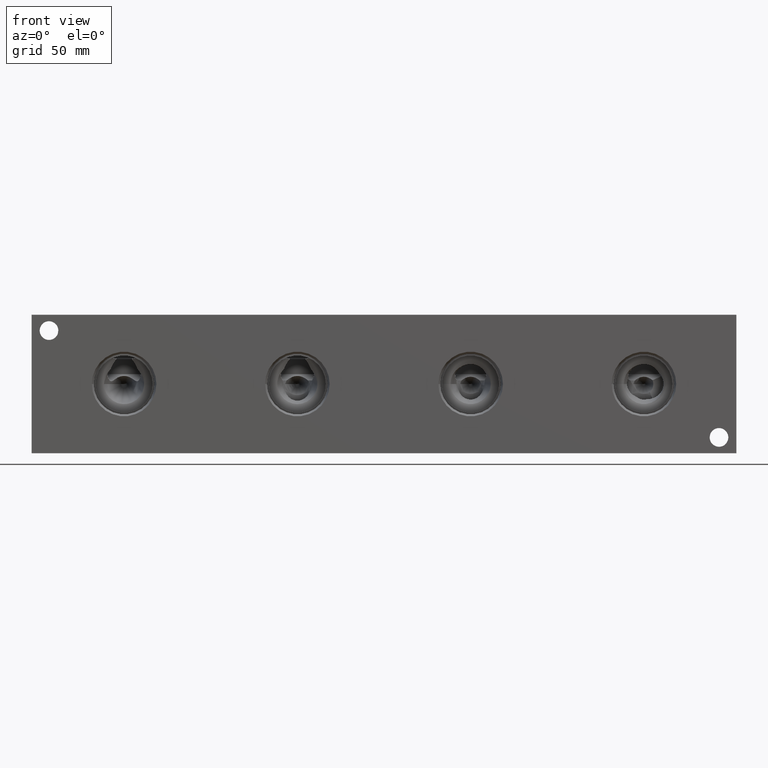
[diagram: clean part render]
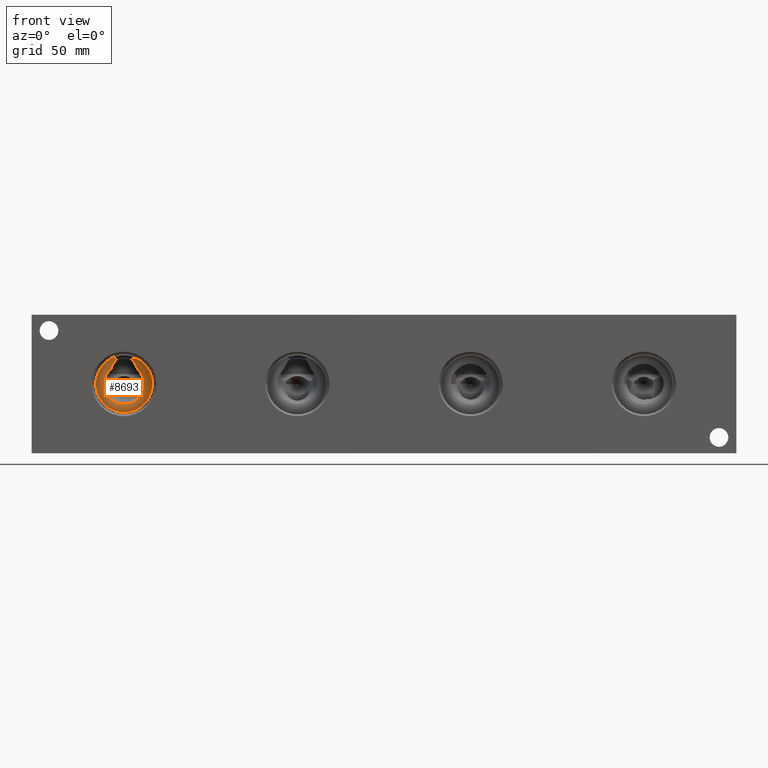
[diagram: same view with one face highlighted and labeled with its STEP entity id]
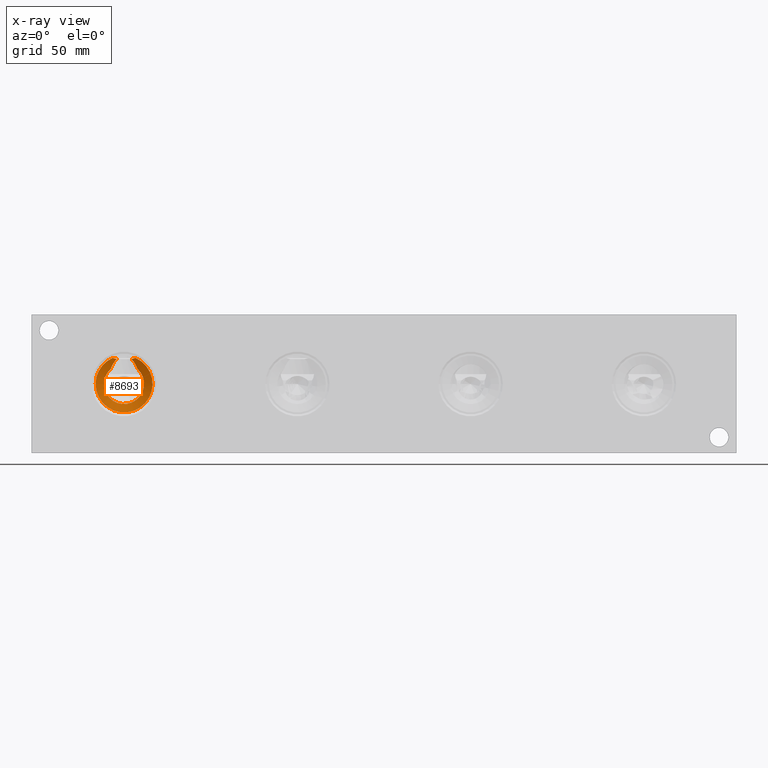
[diagram: x-ray of the same camera — body ghosted, the highlighted face saturated]
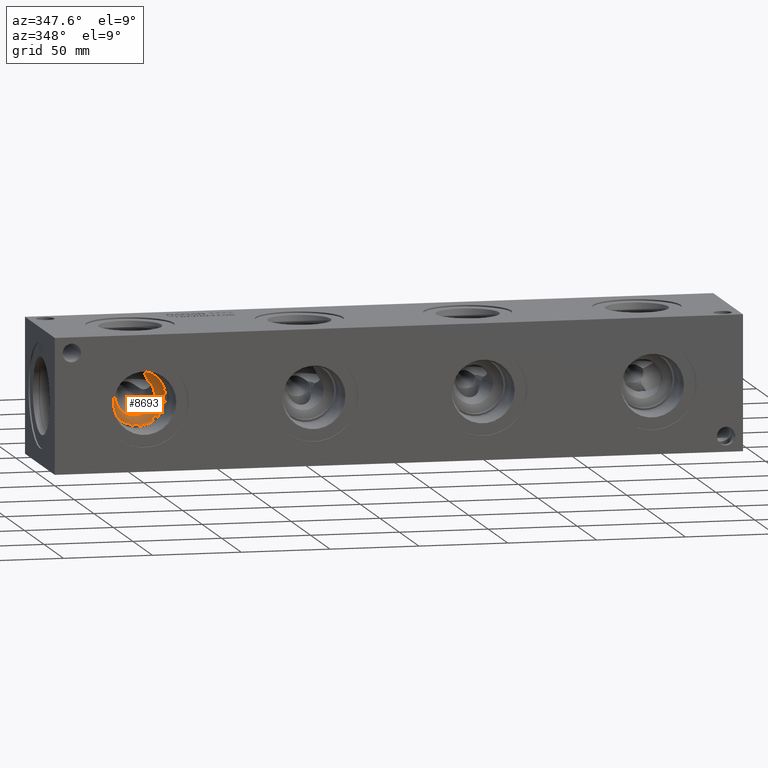
[diagram: same view with one face highlighted and labeled with its STEP entity id]
A machine part, front view. The second image highlights one B-rep face of the part: STEP entity #8693.
The next image is the same camera in x-ray: the body ghosted, the highlighted face saturated — about 0% of this face is hidden behind the body in this view.
A second angle (auxiliary view) of the same face is appended — the face is thin or edge-on in the first view.
In plain terms, the highlighted conical surface has half-angle 66 deg.
Its self-contained STEP definition (entity closure, byte-faithful):
#104=CONICAL_SURFACE('',#9138,7.81685,1.15191730631626);
#213=CIRCLE('',#9135,15.6337);
#214=CIRCLE('',#9137,15.6337);
#215=CIRCLE('',#9139,11.043067199996);
#216=CIRCLE('',#9140,11.043067199996);
#632=B_SPLINE_CURVE_WITH_KNOTS('',3,(#14761,#14762,#14763,#14764),
 .UNSPECIFIED.,.F.,.F.,(4,4),(5.86604570554874,5.86615601111802),
 .UNSPECIFIED.);
#633=B_SPLINE_CURVE_WITH_KNOTS('',3,(#14766,#14767,#14768,#14769),
 .UNSPECIFIED.,.F.,.F.,(4,4),(3.72971064151915,3.98150610606872),
 .UNSPECIFIED.);
#634=B_SPLINE_CURVE_WITH_KNOTS('',3,(#14771,#14772,#14773,#14774,#14775,
#14776,#14777,#14778,#14779,#14780),.UNSPECIFIED.,.F.,.F.,(4,2,2,2,4),(4.53861286815065,
4.60227268786578,4.8777171664716,5.15316164507742,5.16241748704998),
 .UNSPECIFIED.);
#635=B_SPLINE_CURVE_WITH_KNOTS('',3,(#14786,#14787,#14788,#14789,#14790,
#14791,#14792,#14793,#14794,#14795),.UNSPECIFIED.,.F.,.F.,(4,2,2,2,4),(6.05475808067939,
6.06401392265195,6.33945840125777,6.61490287986359,6.67856269957873),
 .UNSPECIFIED.);
#636=B_SPLINE_CURVE_WITH_KNOTS('',3,(#14797,#14798,#14799,#14800),
 .UNSPECIFIED.,.F.,.F.,(4,4),(2.6258823059651,2.87767777051467),
 .UNSPECIFIED.);
#637=B_SPLINE_CURVE_WITH_KNOTS('',3,(#14801,#14802,#14803,#14804),
 .UNSPECIFIED.,.F.,.F.,(4,4),(7.42508711240293,7.42519741797221),
 .UNSPECIFIED.);
#1107=FACE_OUTER_BOUND('',#1601,.T.);
#1601=EDGE_LOOP('',(#7238,#7239,#7240,#7241,#7242,#7243,#7244,#7245,#7246,
#7247));
#3931=VERTEX_POINT('',#14752);
#3932=VERTEX_POINT('',#14754);
#3933=VERTEX_POINT('',#14756);
#3934=VERTEX_POINT('',#14760);
#3935=VERTEX_POINT('',#14765);
#3936=VERTEX_POINT('',#14770);
#3937=VERTEX_POINT('',#14781);
#3938=VERTEX_POINT('',#14783);
#3939=VERTEX_POINT('',#14785);
#3940=VERTEX_POINT('',#14796);
#5073=EDGE_CURVE('',#3932,#3931,#213,.T.);
#5075=EDGE_CURVE('',#3931,#3933,#214,.T.);
#5076=EDGE_CURVE('',#3934,#3933,#632,.T.);
#5077=EDGE_CURVE('',#3935,#3934,#633,.T.);
#5078=EDGE_CURVE('',#3936,#3935,#634,.T.);
#5079=EDGE_CURVE('',#3937,#3936,#215,.T.);
#5080=EDGE_CURVE('',#3938,#3937,#216,.T.);
#5081=EDGE_CURVE('',#3939,#3938,#635,.T.);
#5082=EDGE_CURVE('',#3940,#3939,#636,.T.);
#5083=EDGE_CURVE('',#3932,#3940,#637,.T.);
#7238=ORIENTED_EDGE('',*,*,#5076,.F.);
#7239=ORIENTED_EDGE('',*,*,#5077,.F.);
#7240=ORIENTED_EDGE('',*,*,#5078,.F.);
#7241=ORIENTED_EDGE('',*,*,#5079,.F.);
#7242=ORIENTED_EDGE('',*,*,#5080,.F.);
#7243=ORIENTED_EDGE('',*,*,#5081,.F.);
#7244=ORIENTED_EDGE('',*,*,#5082,.F.);
#7245=ORIENTED_EDGE('',*,*,#5083,.F.);
#7246=ORIENTED_EDGE('',*,*,#5073,.T.);
#7247=ORIENTED_EDGE('',*,*,#5075,.T.);
#8693=ADVANCED_FACE('',(#1107),#104,.F.);
#9135=AXIS2_PLACEMENT_3D('',#14755,#10724,#10725);
#9137=AXIS2_PLACEMENT_3D('',#14758,#10728,#10729);
#9138=AXIS2_PLACEMENT_3D('',#14759,#10730,#10731);
#9139=AXIS2_PLACEMENT_3D('',#14782,#10732,#10733);
#9140=AXIS2_PLACEMENT_3D('',#14784,#10734,#10735);
#10724=DIRECTION('center_axis',(0.,-1.,0.));
#10725=DIRECTION('ref_axis',(1.,0.,0.));
#10728=DIRECTION('center_axis',(0.,-1.,0.));
#10729=DIRECTION('ref_axis',(1.,0.,0.));
#10730=DIRECTION('center_axis',(0.,-1.,0.));
#10731=DIRECTION('ref_axis',(6.12323399573677E-17,0.,-1.));
#10732=DIRECTION('center_axis',(0.,-1.,0.));
#10733=DIRECTION('ref_axis',(1.,0.,0.));
#10734=DIRECTION('center_axis',(0.,-1.,0.));
#10735=DIRECTION('ref_axis',(1.,0.,0.));
#14752=CARTESIAN_POINT('',(35.1663,23.79883,38.1));
#14754=CARTESIAN_POINT('',(44.4842172044077,23.79883,52.40117));
#14755=CARTESIAN_POINT('Origin',(50.8,23.79883,38.1));
#14756=CARTESIAN_POINT('',(57.1157827955923,23.79883,52.40117));
#14758=CARTESIAN_POINT('Origin',(50.8,23.79883,38.1));
#14759=CARTESIAN_POINT('Origin',(50.8,27.279115848754,38.1));
#14760=CARTESIAN_POINT('',(57.1164184121341,23.7991107223064,52.4002));
#14761=CARTESIAN_POINT('Ctrl Pts',(57.1164184121341,23.7991107223064,52.4002));
#14762=CARTESIAN_POINT('Ctrl Pts',(57.1162065556569,23.7990171495133,52.4005233342243));
#14763=CARTESIAN_POINT('Ctrl Pts',(57.1159946714024,23.7989235700783,52.4008466859842));
#14764=CARTESIAN_POINT('Ctrl Pts',(57.1157827955923,23.79883,52.40117));
#14765=CARTESIAN_POINT('',(54.849839540618,24.3984870928336,51.8008331438377));
#14766=CARTESIAN_POINT('Ctrl Pts',(54.849839540618,24.3984870928336,51.8008331438377));
#14767=CARTESIAN_POINT('Ctrl Pts',(55.6158991819006,24.2297690734756,51.9695482731043));
#14768=CARTESIAN_POINT('Ctrl Pts',(56.3687619493409,24.0260186036215,52.1732954564812));
#14769=CARTESIAN_POINT('Ctrl Pts',(57.1164184121341,23.7991107223064,52.4002));
#14770=CARTESIAN_POINT('',(58.1410852447344,25.8427114060094,46.3497151840078));
#14771=CARTESIAN_POINT('Ctrl Pts',(58.1410852450424,25.8427114060645,46.3497151841345));
#14772=CARTESIAN_POINT('Ctrl Pts',(58.0669284267223,25.7982977071769,46.5492360716676));
#14773=CARTESIAN_POINT('Ctrl Pts',(57.9906510798928,25.7535306516611,46.7452757603306));
#14774=CARTESIAN_POINT('Ctrl Pts',(57.5745540294113,25.5146933706028,47.7687530842823));
#14775=CARTESIAN_POINT('Ctrl Pts',(57.1482384792903,25.2882625963867,48.6543537429773));
#14776=CARTESIAN_POINT('Ctrl Pts',(56.1351475405383,24.8343695128217,50.3198632277775));
#14777=CARTESIAN_POINT('Ctrl Pts',(55.5470564435517,24.6079709654936,51.0992611718271));
#14778=CARTESIAN_POINT('Ctrl Pts',(54.892921729579,24.4112768630591,51.7580648104305));
#14779=CARTESIAN_POINT('Ctrl Pts',(54.8714715364657,24.4048809934722,51.7794637409711));
#14780=CARTESIAN_POINT('Ctrl Pts',(54.849839540618,24.3984870928336,51.8008331438377));
#14781=CARTESIAN_POINT('',(39.7569327998894,25.8427114058522,38.1));
#14782=CARTESIAN_POINT('Origin',(50.8,25.84271140628,38.1));
#14783=CARTESIAN_POINT('',(43.4589147552656,25.8427114060094,46.3497151840078));
#14784=CARTESIAN_POINT('Origin',(50.8,25.84271140628,38.1));
#14785=CARTESIAN_POINT('',(46.750160459382,24.3984870928336,51.8008331438377));
#14786=CARTESIAN_POINT('Ctrl Pts',(46.750160459382,24.3984870928336,51.8008331438377));
#14787=CARTESIAN_POINT('Ctrl Pts',(46.7285284635343,24.4048809934722,51.7794637409711));
#14788=CARTESIAN_POINT('Ctrl Pts',(46.707078270421,24.4112768630591,51.7580648104305));
#14789=CARTESIAN_POINT('Ctrl Pts',(46.0529435564484,24.6079709654936,51.0992611718271));
#14790=CARTESIAN_POINT('Ctrl Pts',(45.4648524594618,24.8343695128217,50.3198632277775));
#14791=CARTESIAN_POINT('Ctrl Pts',(44.4517615207098,25.2882625963867,48.6543537429773));
#14792=CARTESIAN_POINT('Ctrl Pts',(44.0254459705887,25.5146933706028,47.7687530842823));
#14793=CARTESIAN_POINT('Ctrl Pts',(43.6093489201072,25.7535306516611,46.7452757603306));
#14794=CARTESIAN_POINT('Ctrl Pts',(43.5330715732778,25.7982977071769,46.5492360716676));
#14795=CARTESIAN_POINT('Ctrl Pts',(43.4589147549576,25.8427114060645,46.3497151841345));
#14796=CARTESIAN_POINT('',(44.4835815878659,23.7991107223064,52.4002));
#14797=CARTESIAN_POINT('Ctrl Pts',(44.4835815878659,23.7991107223064,52.4002));
#14798=CARTESIAN_POINT('Ctrl Pts',(45.2312439209132,24.0260203851977,52.1732936749312));
#14799=CARTESIAN_POINT('Ctrl Pts',(45.9841110437896,24.2297713255955,51.969546021023));
#14800=CARTESIAN_POINT('Ctrl Pts',(46.750160459382,24.3984870928336,51.8008331438377));
#14801=CARTESIAN_POINT('Ctrl Pts',(44.4842172044077,23.79883,52.40117));
#14802=CARTESIAN_POINT('Ctrl Pts',(44.484005328588,23.7989235700825,52.4008466859696));
#14803=CARTESIAN_POINT('Ctrl Pts',(44.4837934443528,23.799017149509,52.4005233342392));
#14804=CARTESIAN_POINT('Ctrl Pts',(44.4835815878659,23.7991107223064,52.4002));